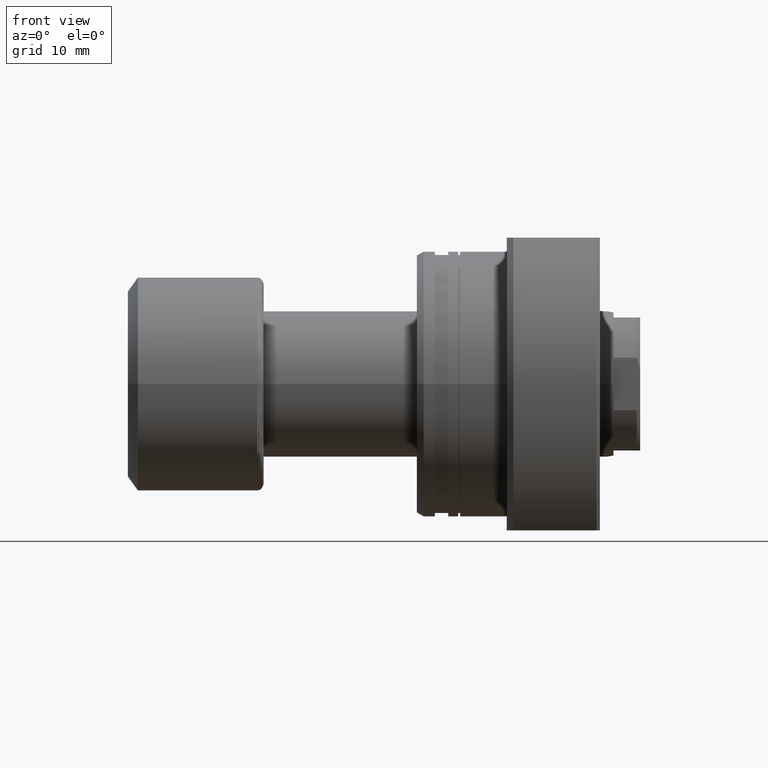
[diagram: clean part render]
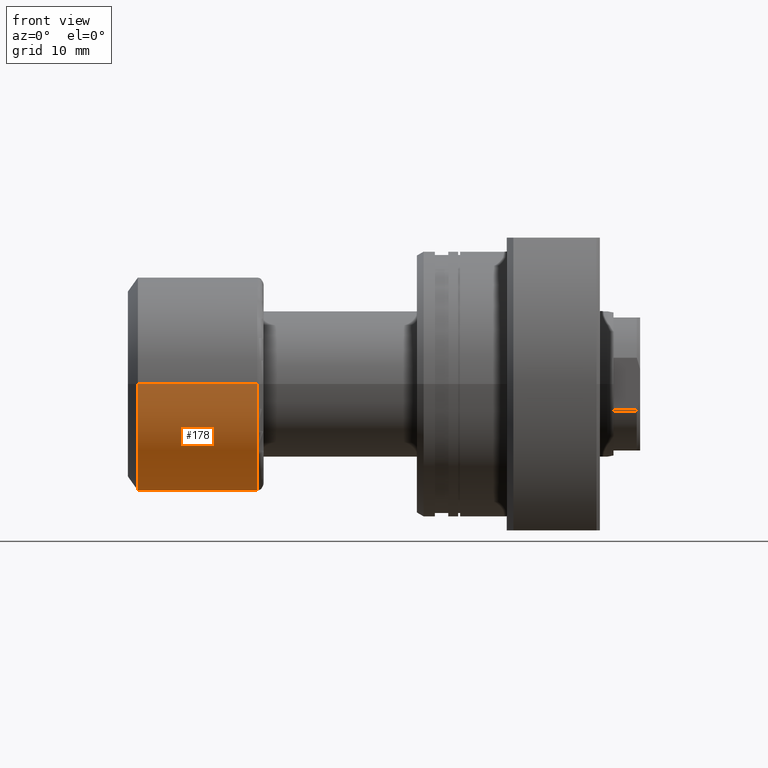
[diagram: same view with one face highlighted and labeled with its STEP entity id]
A machine part, front view. The second image highlights one B-rep face of the part: STEP entity #178.
In plain terms, the highlighted cylindrical surface (partial cylindrical patch) has radius 16 mm, axis along (-1, -0, -0).
Its self-contained STEP definition (entity closure, byte-faithful):
#59 = VECTOR ( 'NONE', #2646, 1000.000000000000000 ) ;
#160 = ORIENTED_EDGE ( 'NONE', *, *, #924, .F. ) ;
#178 = ADVANCED_FACE ( 'NONE', ( #746 ), #256, .T. ) ;
#235 = CARTESIAN_POINT ( 'NONE',  ( 1.500000000000001998, 1.604313483103600935E-17, 0.000000000000000000 ) ) ;
#237 = CARTESIAN_POINT ( 'NONE',  ( 0.000000000000000000, 0.000000000000000000, 0.000000000000000000 ) ) ;
#256 = CYLINDRICAL_SURFACE ( 'NONE', #578, 16.00000000000000000 ) ;
#515 = DIRECTION ( 'NONE',  ( 1.355252715606880543E-17, -1.000000000000000000, 0.000000000000000000 ) ) ;
#518 = DIRECTION ( 'NONE',  ( 1.069542322069065801E-17, -1.000000000000000000, 0.000000000000000000 ) ) ;
#560 = CARTESIAN_POINT ( 'NONE',  ( 19.40000000000000213, -16.00000000000000000, 0.000000000000000000 ) ) ;
#578 = AXIS2_PLACEMENT_3D ( 'NONE', #237, #2503, #518 ) ;
#629 = CARTESIAN_POINT ( 'NONE',  ( -1.711267715310505281E-16, 16.00000000000000000, 1.959434878635765131E-15 ) ) ;
#669 = AXIS2_PLACEMENT_3D ( 'NONE', #235, #1237, #515 ) ;
#746 = FACE_OUTER_BOUND ( 'NONE', #1565, .T. ) ;
#775 = ORIENTED_EDGE ( 'NONE', *, *, #1099, .T. ) ;
#924 = EDGE_CURVE ( 'NONE', #2253, #1210, #3123, .T. ) ;
#1093 = VERTEX_POINT ( 'NONE', #2452 ) ;
#1099 = EDGE_CURVE ( 'NONE', #2597, #1093, #2042, .T. ) ;
#1161 = VECTOR ( 'NONE', #3032, 1000.000000000000000 ) ;
#1210 = VERTEX_POINT ( 'NONE', #1827 ) ;
#1237 = DIRECTION ( 'NONE',  ( -1.000000000000000000, -1.069542322069065801E-17, -0.000000000000000000 ) ) ;
#1565 = EDGE_LOOP ( 'NONE', ( #160, #2765, #775, #2169 ) ) ;
#1760 = CIRCLE ( 'NONE', #2281, 16.00000000000000000 ) ;
#1801 = DIRECTION ( 'NONE',  ( -1.000000000000000000, -1.069542322069065801E-17, -0.000000000000000000 ) ) ;
#1827 = CARTESIAN_POINT ( 'NONE',  ( 1.500000000000001776, 16.00000000000000000, 0.000000000000000000 ) ) ;
#2042 = LINE ( 'NONE', #2303, #1161 ) ;
#2069 = CIRCLE ( 'NONE', #669, 16.00000000000000000 ) ;
#2079 = CARTESIAN_POINT ( 'NONE',  ( 19.40000000000000213, 2.074912104813987675E-16, 0.000000000000000000 ) ) ;
#2081 = EDGE_CURVE ( 'NONE', #1210, #1093, #2069, .T. ) ;
#2169 = ORIENTED_EDGE ( 'NONE', *, *, #2081, .F. ) ;
#2218 = EDGE_CURVE ( 'NONE', #2253, #2597, #1760, .T. ) ;
#2253 = VERTEX_POINT ( 'NONE', #3072 ) ;
#2281 = AXIS2_PLACEMENT_3D ( 'NONE', #2079, #1801, #2847 ) ;
#2303 = CARTESIAN_POINT ( 'NONE',  ( 1.711267715310505281E-16, -16.00000000000000000, 0.000000000000000000 ) ) ;
#2452 = CARTESIAN_POINT ( 'NONE',  ( 1.500000000000002220, -16.00000000000000000, 1.959434878635765526E-15 ) ) ;
#2503 = DIRECTION ( 'NONE',  ( -1.000000000000000000, -1.069542322069065801E-17, -0.000000000000000000 ) ) ;
#2597 = VERTEX_POINT ( 'NONE', #560 ) ;
#2646 = DIRECTION ( 'NONE',  ( -1.000000000000000000, -1.069542322069065801E-17, -0.000000000000000000 ) ) ;
#2765 = ORIENTED_EDGE ( 'NONE', *, *, #2218, .T. ) ;
#2847 = DIRECTION ( 'NONE',  ( 0.000000000000000000, -1.000000000000000000, 0.000000000000000000 ) ) ;
#3032 = DIRECTION ( 'NONE',  ( -1.000000000000000000, -1.069542322069065801E-17, -0.000000000000000000 ) ) ;
#3072 = CARTESIAN_POINT ( 'NONE',  ( 19.40000000000000213, 16.00000000000000000, 1.959434878635765131E-15 ) ) ;
#3123 = LINE ( 'NONE', #629, #59 ) ;